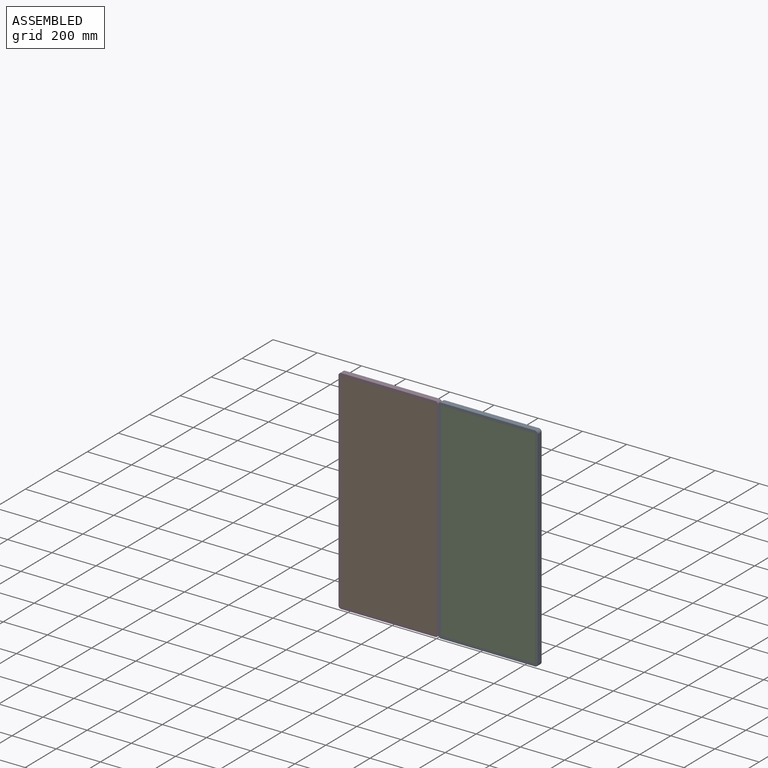
[diagram: assembled view]
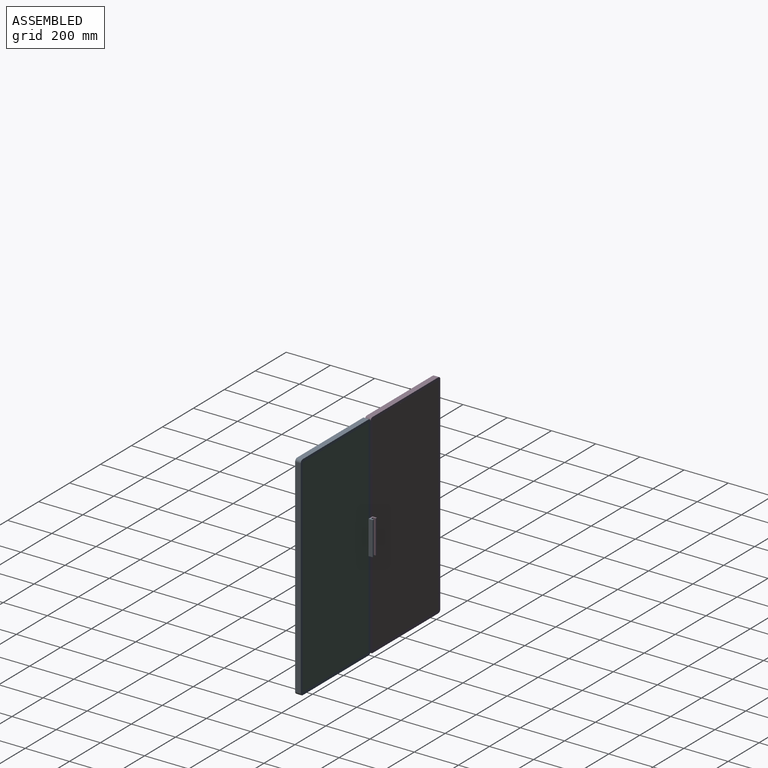
[diagram: assembled view, second angle]
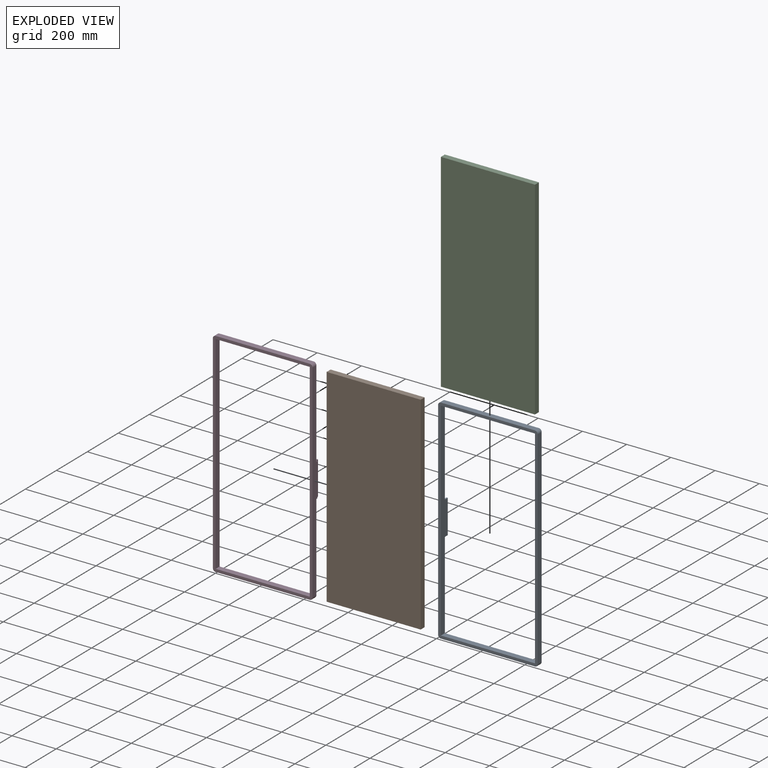
[diagram: exploded view]
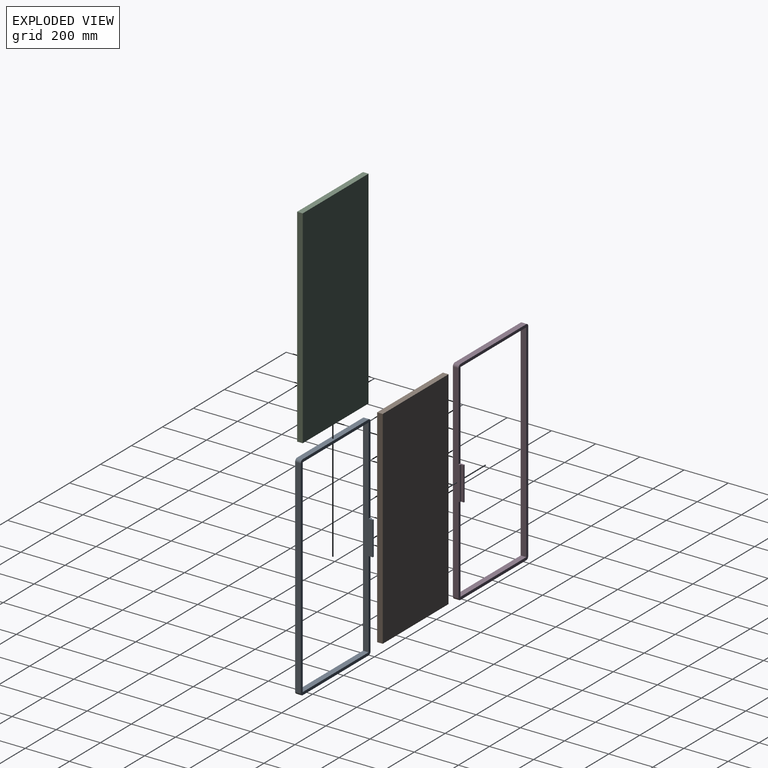
[diagram: exploded view, second angle]
ASSEMBLY  parts=4 mates=2
PART A: 19 faces, bbox 450.9x44.5x965.2 mm
  f0: plane 939.8x25.4mm, normal (1,0,0), area 23870.9mm2, adj f1,f11,f12,f13
  f1: cylinder r=12.7mm len=25.4mm, axis (0,1,0), area 506.7mm2, adj f0,f2,f12,f13
  f2: plane 425.45x25.4mm, normal (0,0,-1), area 10806.4mm2, adj f1,f3,f12,f13
  f3: cylinder r=12.7mm len=25.4mm, axis (0,1,0), area 506.7mm2, adj f2,f4,f12,f13
  f4: plane 939.8x31.75mm, normal (-1,0,0), area 24838.7mm2, adj f3,f5,f12,f13,f16,f17,f18
  f5: cylinder r=12.7mm len=25.4mm, axis (0,1,0), area 506.7mm2, adj f4,f6,f12,f13
  f6: plane 425.45x25.4mm, normal (0,0,1), area 10806.4mm2, adj f5,f11,f12,f13
  f7: plane 939.8x25.4mm, normal (-1,0,0), area 23870.9mm2, adj f8,f10,f12,f13
  f8: plane 425.45x25.4mm, normal (0,0,-1), area 10806.4mm2, adj f7,f9,f12,f13
  f9: plane 939.8x44.45mm, normal (1,0,0), area 26774.1mm2, adj f8,f10,f12,f13,f14,f17,f18
  f10: plane 425.45x25.4mm, normal (0,0,1), area 10806.4mm2, adj f7,f9,f12,f13
  f11: cylinder r=12.7mm len=25.4mm, axis (0,1,0), area 506.7mm2, adj f0,f6,f12,f13
  f12: plane 965.2x450.85mm, normal (0,-1,0), area 35184.1mm2, adj f0,f1,f2,f3,f4,f5,f6,f7
  f13: plane 965.2x450.85mm, normal (0,1,0), area 33248.6mm2, adj f0,f1,f2,f3,f4,f5,f6,f7
  f14: plane 152.4x6.35mm, normal (0,1,0), area 967.7mm2, adj f9,f15,f17,f18
  f15: plane 152.4x12.7mm, normal (-1,0,0), area 1935.5mm2, adj f14,f16,f17,f18
  f16: plane 152.4x6.35mm, normal (0,1,0), area 967.7mm2, adj f4,f15,f17,f18
  f17: plane 19.05x12.7mm, normal (0,0,1), area 161.3mm2, adj f4,f9,f13,f14,f15,f16
  f18: plane 19.05x12.7mm, normal (0,0,-1), area 161.3mm2, adj f4,f9,f13,f14,f15,f16
PART B: 6 faces, bbox 425.5x25.4x939.8 mm
  f0: plane 939.8x425.45mm, normal (0,-1,0), area 399837.9mm2, adj f1,f3,f4,f5
  f1: plane 425.45x25.4mm, normal (0,0,1), area 10806.4mm2, adj f0,f2,f4,f5
  f2: plane 939.8x425.45mm, normal (0,1,0), area 399837.9mm2, adj f1,f3,f4,f5
  f3: plane 425.45x25.4mm, normal (0,0,-1), area 10806.4mm2, adj f0,f2,f4,f5
  f4: plane 939.8x25.4mm, normal (-1,0,0), area 23870.9mm2, adj f0,f1,f2,f3
  f5: plane 939.8x25.4mm, normal (1,0,0), area 23870.9mm2, adj f0,f1,f2,f3
PART C: 6 faces, bbox 425.5x25.4x939.8 mm
  f0: plane 939.8x425.45mm, normal (0,-1,0), area 399837.9mm2, adj f1,f3,f4,f5
  f1: plane 425.45x25.4mm, normal (0,0,1), area 10806.4mm2, adj f0,f2,f4,f5
  f2: plane 939.8x425.45mm, normal (0,1,0), area 399837.9mm2, adj f1,f3,f4,f5
  f3: plane 425.45x25.4mm, normal (0,0,-1), area 10806.4mm2, adj f0,f2,f4,f5
  f4: plane 939.8x25.4mm, normal (1,0,0), area 23870.9mm2, adj f0,f1,f2,f3
  f5: plane 939.8x25.4mm, normal (-1,0,0), area 23870.9mm2, adj f0,f1,f2,f3
PART D: 19 faces, bbox 450.9x44.5x965.2 mm
  f0: plane 939.8x25.4mm, normal (-1,0,0), area 23870.9mm2, adj f1,f11,f12,f13
  f1: cylinder r=12.7mm len=25.4mm, axis (0,1,0), area 506.7mm2, adj f0,f2,f12,f13
  f2: plane 425.45x25.4mm, normal (0,0,-1), area 10806.4mm2, adj f1,f3,f12,f13
  f3: cylinder r=12.7mm len=25.4mm, axis (0,1,0), area 506.7mm2, adj f2,f4,f12,f13
  f4: plane 939.8x31.75mm, normal (1,0,0), area 24838.7mm2, adj f3,f5,f12,f13,f16,f17,f18
  f5: cylinder r=12.7mm len=25.4mm, axis (0,1,0), area 506.7mm2, adj f4,f6,f12,f13
  f6: plane 425.45x25.4mm, normal (0,0,1), area 10806.4mm2, adj f5,f11,f12,f13
  f7: plane 939.8x25.4mm, normal (1,0,0), area 23870.9mm2, adj f8,f10,f12,f13
  f8: plane 425.45x25.4mm, normal (0,0,-1), area 10806.4mm2, adj f7,f9,f12,f13
  f9: plane 939.8x44.45mm, normal (-1,0,0), area 26774.1mm2, adj f8,f10,f12,f13,f14,f17,f18
  f10: plane 425.45x25.4mm, normal (0,0,1), area 10806.4mm2, adj f7,f9,f12,f13
  f11: cylinder r=12.7mm len=25.4mm, axis (0,1,0), area 506.7mm2, adj f0,f6,f12,f13
  f12: plane 965.2x450.85mm, normal (0,-1,0), area 35184.1mm2, adj f0,f1,f2,f3,f4,f5,f6,f7
  f13: plane 965.2x450.85mm, normal (0,1,0), area 33248.6mm2, adj f0,f1,f2,f3,f4,f5,f6,f7
  f14: plane 152.4x6.35mm, normal (0,1,0), area 967.7mm2, adj f9,f15,f17,f18
  f15: plane 152.4x12.7mm, normal (1,0,0), area 1935.5mm2, adj f14,f16,f17,f18
  f16: plane 152.4x6.35mm, normal (0,1,0), area 967.7mm2, adj f4,f15,f17,f18
  f17: plane 19.05x12.7mm, normal (0,0,1), area 161.3mm2, adj f4,f9,f13,f14,f15,f16
  f18: plane 19.05x12.7mm, normal (0,0,-1), area 161.3mm2, adj f4,f9,f13,f14,f15,f16
PLACE A at identity fixed
PLACE B at identity
PLACE C at identity
PLACE D at identity
MATE fastened B.f1 <-> D.f8  axis (0,0,1) through (0,0,469.9)mm
MATE fastened A.f8 <-> C.f1  axis (0,0,-1) through (450.85,-25.4,469.9)mm
